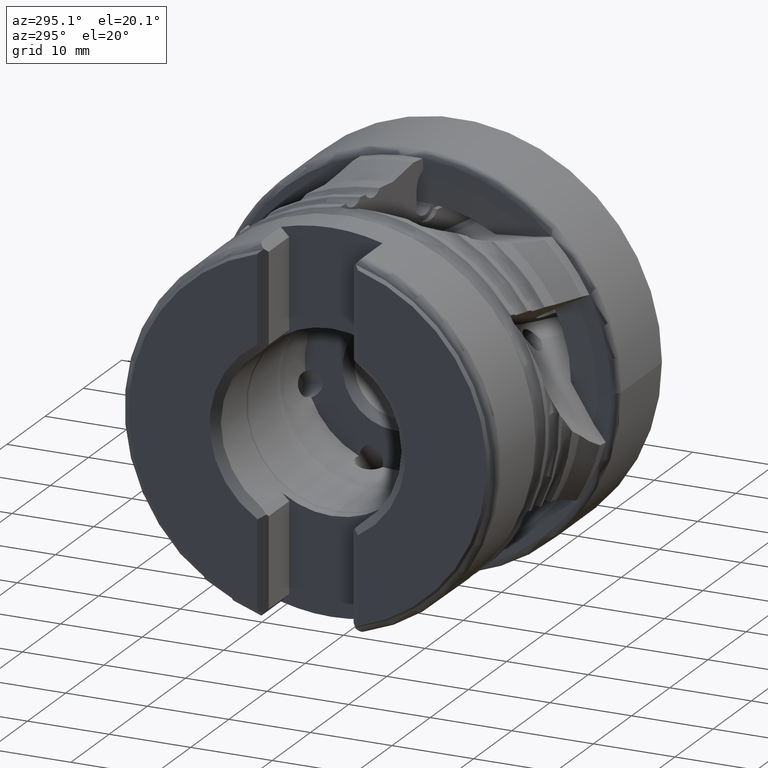
[diagram: clean part render]
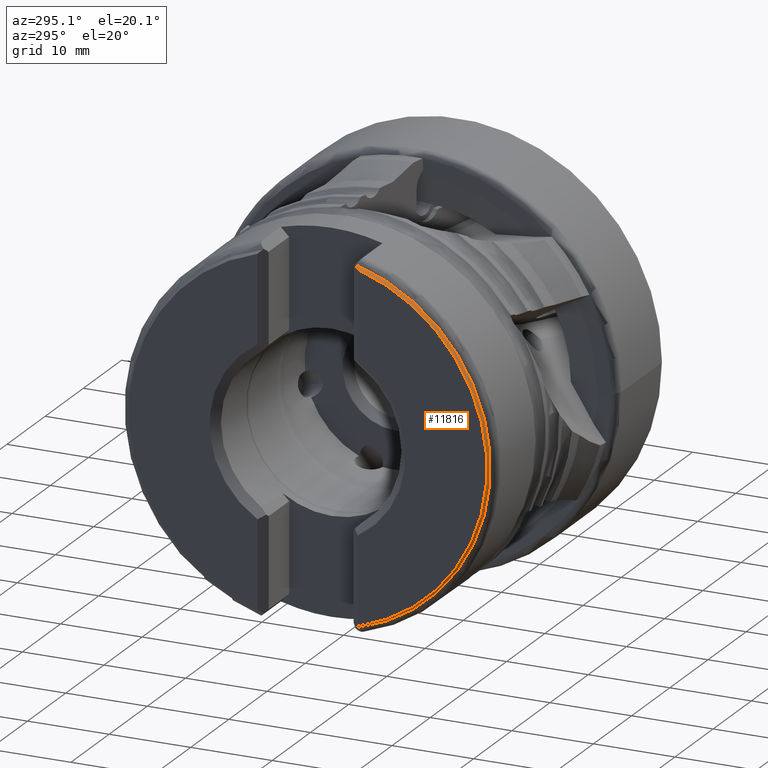
[diagram: same view with one face highlighted and labeled with its STEP entity id]
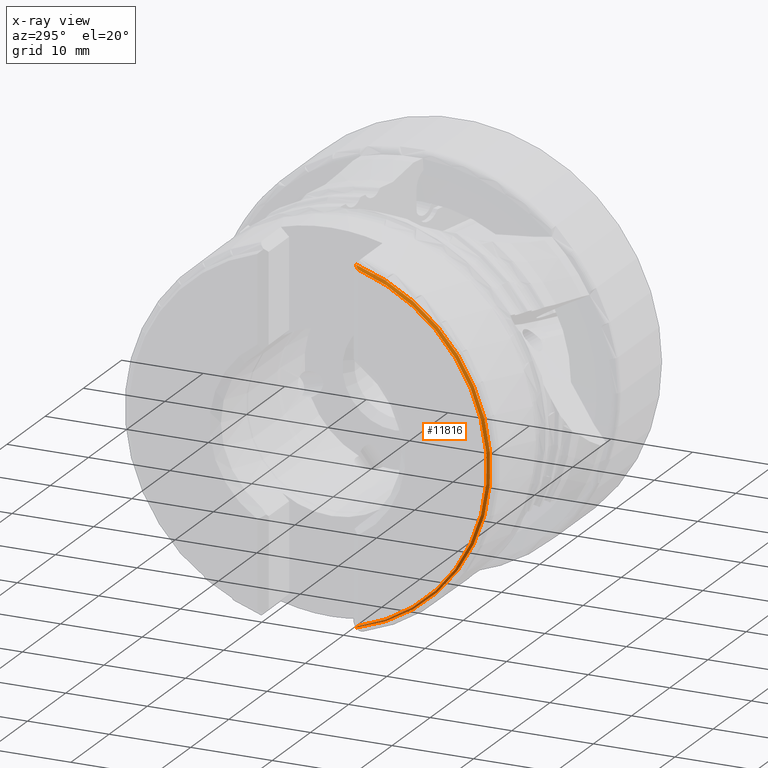
[diagram: x-ray of the same camera — body ghosted, the highlighted face saturated]
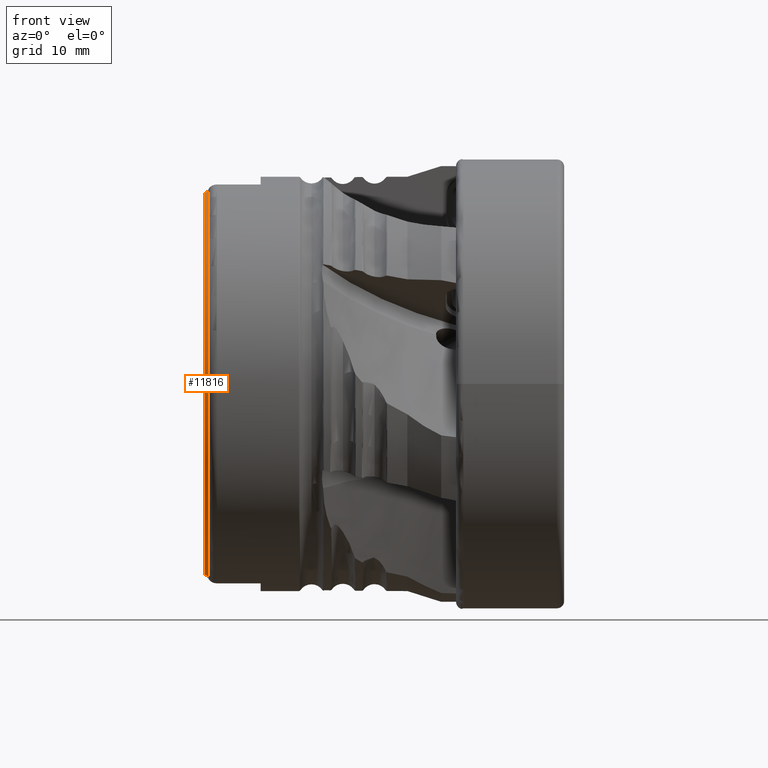
[diagram: same view with one face highlighted and labeled with its STEP entity id]
A machine part, auxiliary view. The second image highlights one B-rep face of the part: STEP entity #11816.
The next image is the same camera in x-ray: the body ghosted, the highlighted face saturated — about 0% of this face is hidden behind the body in this view.
A second angle (front view) of the same face is appended — the face is thin or edge-on in the first view.
In plain terms, the highlighted conical surface has half-angle 29.856 deg.
Its self-contained STEP definition (entity closure, byte-faithful):
#624 = EDGE_CURVE ( 'NONE', #9774, #9834, #5753, .T. ) ;
#626 = EDGE_CURVE ( 'NONE', #9803, #9832, #5761, .T. ) ;
#627 = EDGE_CURVE ( 'NONE', #9803, #9774, #7693, .T. ) ;
#628 = EDGE_CURVE ( 'NONE', #9834, #9832, #7694, .T. ) ;
#846 = CARTESIAN_POINT ( 'NONE',  ( -39.21050843023977700, -5.960508430239773500, -21.22278218878326700 ) ) ;
#847 = CARTESIAN_POINT ( 'NONE',  ( -39.34956494406127800, 0.0000000000000000000, 0.0000000000000000000 ) ) ;
#848 = DIRECTION ( 'NONE',  ( 1.000000000000000000, -0.0000000000000000000, -0.0000000000000000000 ) ) ;
#849 = DIRECTION ( 'NONE',  ( 0.0000000000000000000, 0.0000000000000000000, -1.000000000000000000 ) ) ;
#852 = CARTESIAN_POINT ( 'NONE',  ( -39.07023915927145900, -5.835239159271441000, 21.34104737338550400 ) ) ;
#853 = CARTESIAN_POINT ( 'NONE',  ( -38.92876197310685200, -5.693761973106827400, 21.46259768978588800 ) ) ;
#854 = CARTESIAN_POINT ( 'NONE',  ( -39.34956494406127800, -6.099564944061270000, -21.09949493332587200 ) ) ;
#855 = CARTESIAN_POINT ( 'NONE',  ( -38.92876197310685200, 0.0000000000000000000, 0.0000000000000000000 ) ) ;
#856 = DIRECTION ( 'NONE',  ( 1.000000000000000000, -0.0000000000000000000, -0.0000000000000000000 ) ) ;
#857 = DIRECTION ( 'NONE',  ( 0.0000000000000000000, 0.0000000000000000000, -1.000000000000000000 ) ) ;
#859 = CARTESIAN_POINT ( 'NONE',  ( -39.21050988127211000, -5.975509881272089700, 21.21856308950788500 ) ) ;
#860 = CARTESIAN_POINT ( 'NONE',  ( -39.34956494406127800, -6.114564944061259900, 21.09515286726130200 ) ) ;
#863 = CARTESIAN_POINT ( 'NONE',  ( -39.07023770943655400, -5.820237709436537600, -21.34514368195335600 ) ) ;
#864 = CARTESIAN_POINT ( 'NONE',  ( -38.92876197310685200, -5.678761973106844600, -21.46657139491063400 ) ) ;
#1285 = CARTESIAN_POINT ( 'NONE',  ( -38.92876197310685200, -5.693761973106827400, 21.46259768978588800 ) ) ;
#1291 = CARTESIAN_POINT ( 'NONE',  ( -39.34956494406127800, -6.114564944061259900, 21.09515286726130200 ) ) ;
#1292 = CARTESIAN_POINT ( 'NONE',  ( -39.34956494406127800, -6.099564944061270000, -21.09949493332587200 ) ) ;
#1294 = CARTESIAN_POINT ( 'NONE',  ( -38.92876197310685200, -5.678761973106844600, -21.46657139491063400 ) ) ;
#2314 = FACE_OUTER_BOUND ( 'NONE', #10247, .T. ) ;
#2331 = CONICAL_SURFACE ( 'NONE', #9029, 22.20499999999999500, 0.5210887949825749900 ) ;
#4001 = AXIS2_PLACEMENT_3D ( 'NONE', #847, #848, #849 ) ;
#4002 = AXIS2_PLACEMENT_3D ( 'NONE', #855, #856, #857 ) ;
#5024 = DIRECTION ( 'NONE',  ( 0.0000000000000000000, 0.0000000000000000000, -1.000000000000000000 ) ) ;
#5026 = CARTESIAN_POINT ( 'NONE',  ( -38.92876197310685200, 0.0000000000000000000, 0.0000000000000000000 ) ) ;
#5027 = DIRECTION ( 'NONE',  ( 1.000000000000000000, -0.0000000000000000000, -0.0000000000000000000 ) ) ;
#5753 = CIRCLE ( 'NONE', #4001, 21.96345553295895700 ) ;
#5761 = CIRCLE ( 'NONE', #4002, 22.20499999999999500 ) ;
#7693 =( BOUNDED_CURVE ( )  B_SPLINE_CURVE ( 3, ( #853, #852, #859, #860 ),
 .UNSPECIFIED., .F., .T. ) 
 B_SPLINE_CURVE_WITH_KNOTS ( ( 4, 4 ),
 ( 2.380207736278173900, 2.396400637074411800 ),
 .UNSPECIFIED. ) 
 CURVE ( )  GEOMETRIC_REPRESENTATION_ITEM ( )  RATIONAL_B_SPLINE_CURVE ( ( 1.000000000000000000, 0.9999781492830148700, 0.9999781492830148700, 1.000000000000000000 ) ) 
 REPRESENTATION_ITEM ( '' )  );
#7694 =( BOUNDED_CURVE ( )  B_SPLINE_CURVE ( 3, ( #854, #846, #863, #864 ),
 .UNSPECIFIED., .F., .T. ) 
 B_SPLINE_CURVE_WITH_KNOTS ( ( 4, 4 ),
 ( 3.887286732049683600, 3.903476469514502800 ),
 .UNSPECIFIED. ) 
 CURVE ( )  GEOMETRIC_REPRESENTATION_ITEM ( )  RATIONAL_B_SPLINE_CURVE ( ( 1.000000000000000000, 0.9999781578193396300, 0.9999781578193396300, 1.000000000000000000 ) ) 
 REPRESENTATION_ITEM ( '' )  );
#9029 = AXIS2_PLACEMENT_3D ( 'NONE', #5026, #5027, #5024 ) ;
#9774 = VERTEX_POINT ( 'NONE', #1291 ) ;
#9803 = VERTEX_POINT ( 'NONE', #1285 ) ;
#9832 = VERTEX_POINT ( 'NONE', #1294 ) ;
#9834 = VERTEX_POINT ( 'NONE', #1292 ) ;
#10210 = ORIENTED_EDGE ( 'NONE', *, *, #626, .F. ) ;
#10247 = EDGE_LOOP ( 'NONE', ( #10210, #10433, #10434, #10435 ) ) ;
#10433 = ORIENTED_EDGE ( 'NONE', *, *, #627, .T. ) ;
#10434 = ORIENTED_EDGE ( 'NONE', *, *, #624, .T. ) ;
#10435 = ORIENTED_EDGE ( 'NONE', *, *, #628, .T. ) ;
#11816 = ADVANCED_FACE ( 'NONE', ( #2314 ), #2331, .T. ) ;